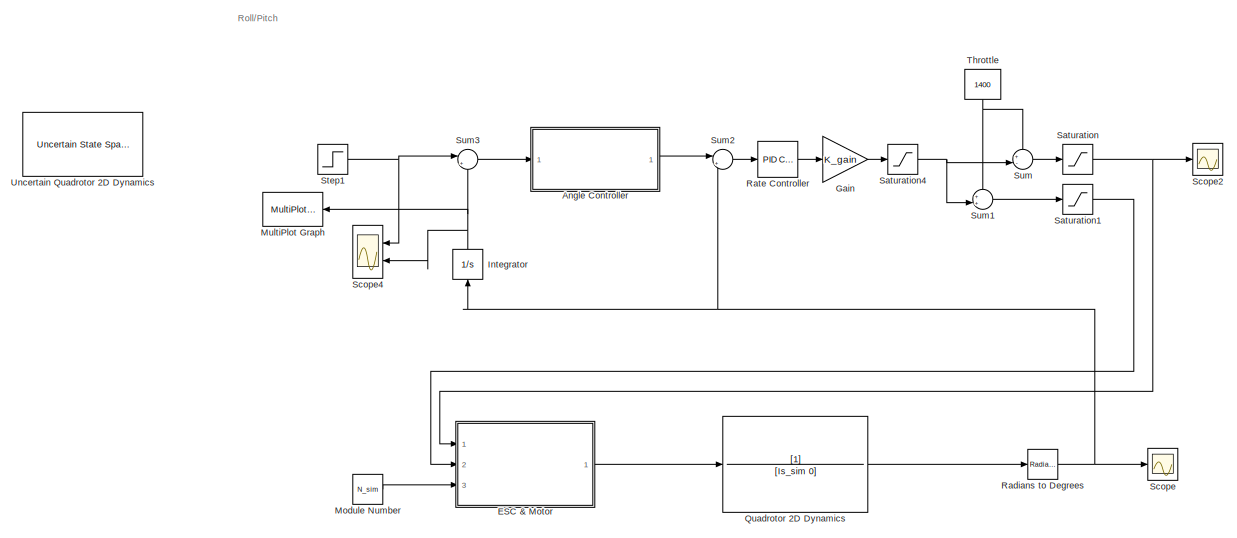
[diagram: root canvas - part 1/3, top left region]
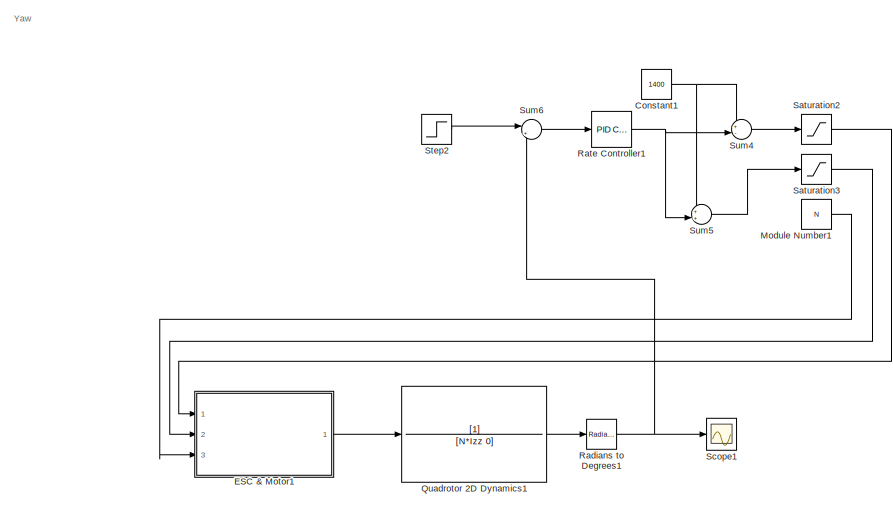
[diagram: root canvas - part 2/3, top right region]
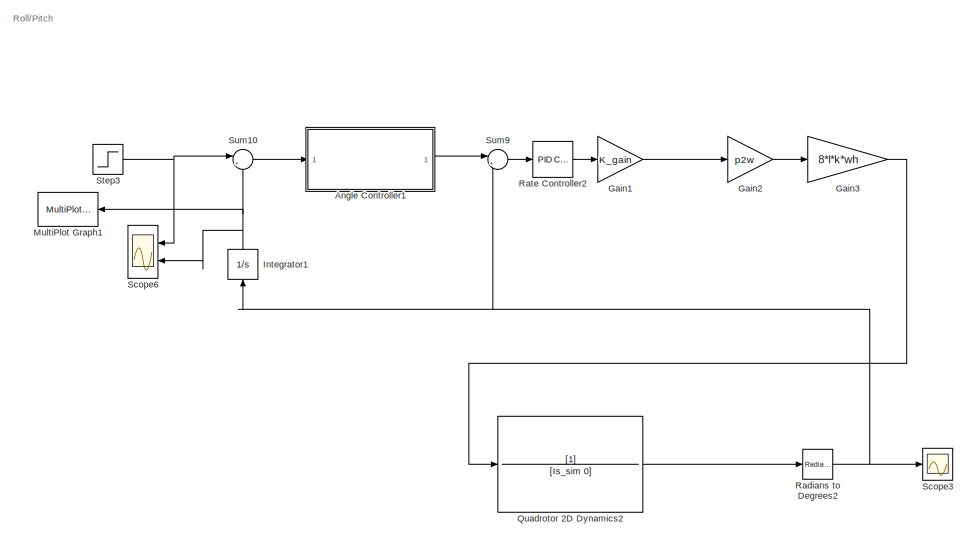
[diagram: root canvas - part 3/3, bottom left region]
MODEL slx_2870eb1e5814
KIND model
CONFIG AbsTol = auto
CONFIG EnableMultiTasking = off
CONFIG FixedStep = 0.005
CONFIG InitFcn = N = 1;\nm = 1;\nl = 0.3;\n\nmax_thrust = 940/1000 * 10;\nmax_rpm = 13610;\nk = max_thrust / (max_rpm^2);\np2w = max_rpm/1000;\nwh = 5444;
CONFIG MaxStep = auto
CONFIG MinStep = auto
CONFIG RelTol = 1e-3
CONFIG SampleTimeConstraint = Unconstrained
CONFIG SolverName = FixedStepAuto
CONFIG StartTime = 0.0
CONFIG StopTime = 2.5
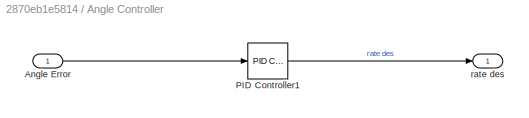
BLOCK [SubSystem] Angle Controller
  Ports = [1, 1]
  RequestExecContextInheritance = off
BLOCK [Inport] Angle Controller/Angle Error
BLOCK [Reference] Angle Controller/PID Controller1  REF=slpidlib/PID Controller
  Ports = [1, 1]
  SourceBlock = slpidlib/PID Controller
  SourceProductBaseCode = SL
  SourceType = PID 1dof
BLOCK [Outport] Angle Controller/rate des
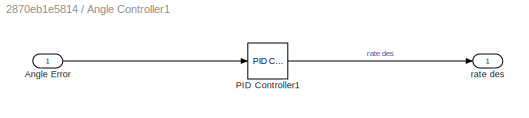
BLOCK [SubSystem] Angle Controller1
  Ports = [1, 1]
  RequestExecContextInheritance = off
BLOCK [Inport] Angle Controller1/Angle Error
BLOCK [Reference] Angle Controller1/PID Controller1  REF=slpidlib/PID Controller
  Ports = [1, 1]
  SourceBlock = slpidlib/PID Controller
  SourceProductBaseCode = SL
  SourceType = PID 1dof
BLOCK [Outport] Angle Controller1/rate des
BLOCK [Constant] Constant1
  Commented = on
  Value = 1400
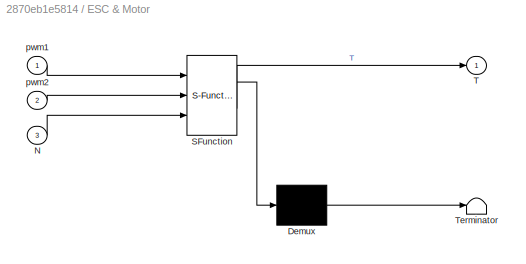
BLOCK [SubSystem] ESC & Motor
  ErrorFcn = Stateflow.Translate.translate
  PermitHierarchicalResolution = ExplicitOnly
  Ports = [3, 1]
  RequestExecContextInheritance = off
  SFBlockType = MATLAB Function
  TreatAsAtomicUnit = on
BLOCK [Demux] ESC & Motor/ Demux 
  Outputs = 1
  Ports = [1, 1]
BLOCK [S-Function] ESC & Motor/ SFunction 
  EnableBusSupport = on
  FunctionName = sf_sfun
  PortCounts = [3 2]
  Ports = [3, 2]
  SFcnIsStateOwnerBlock = off
  SFunctionDeploymentMode = off
  Tag = Stateflow S-Function 2
BLOCK [Terminator] ESC & Motor/ Terminator 
BLOCK [Inport] ESC & Motor/N
  Port = 3
BLOCK [Outport] ESC & Motor/T
BLOCK [Inport] ESC & Motor/pwm1
BLOCK [Inport] ESC & Motor/pwm2
  Port = 2
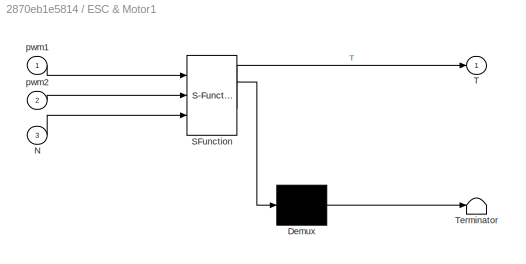
BLOCK [SubSystem] ESC & Motor1
  Commented = on
  ErrorFcn = Stateflow.Translate.translate
  PermitHierarchicalResolution = ExplicitOnly
  Ports = [3, 1]
  RequestExecContextInheritance = off
  SFBlockType = MATLAB Function
  TreatAsAtomicUnit = on
BLOCK [Demux] ESC & Motor1/ Demux 
  Outputs = 1
  Ports = [1, 1]
BLOCK [S-Function] ESC & Motor1/ SFunction 
  EnableBusSupport = on
  FunctionName = sf_sfun
  PortCounts = [3 2]
  Ports = [3, 2]
  SFcnIsStateOwnerBlock = off
  SFunctionDeploymentMode = off
  Tag = Stateflow S-Function 1
BLOCK [Terminator] ESC & Motor1/ Terminator 
BLOCK [Inport] ESC & Motor1/N
  Port = 3
BLOCK [Outport] ESC & Motor1/T
BLOCK [Inport] ESC & Motor1/pwm1
BLOCK [Inport] ESC & Motor1/pwm2
  Port = 2
BLOCK [Gain] Gain
  Gain = K_gain
BLOCK [Gain] Gain1
  Gain = K_gain
BLOCK [Gain] Gain2
  Gain = p2w
BLOCK [Gain] Gain3
  Gain = 8*l*k*wh
BLOCK [Integrator] Integrator
  NameLocation = right
  Ports = [1, 1]
BLOCK [Integrator] Integrator1
  NameLocation = right
  Ports = [1, 1]
BLOCK [Constant] Module Number
  Value = N_sim
BLOCK [Constant] Module Number1
  Commented = on
  Value = N
BLOCK [Reference] MultiPlot Graph  REF=RCTblocks/MultiPlot Graph
  Commented = on
  Ports = [1]
  SourceBlock = RCTblocks/MultiPlot Graph
  SourceProductBaseCode = RC
  SourceType = MultiPlot Graph
  Tag = MultiPlot
BLOCK [Reference] MultiPlot Graph1  REF=RCTblocks/MultiPlot Graph
  Commented = on
  Ports = [1]
  SourceBlock = RCTblocks/MultiPlot Graph
  SourceProductBaseCode = RC
  SourceType = MultiPlot Graph
  Tag = MultiPlot
BLOCK [TransferFcn] Quadrotor 2D Dynamics
  Denominator = [Is_sim 0]
BLOCK [TransferFcn] Quadrotor 2D Dynamics1
  Commented = on
  Denominator = [N*Izz 0]
BLOCK [TransferFcn] Quadrotor 2D Dynamics2
  Denominator = [Is_sim 0]
BLOCK [Reference] Radians to Degrees  REF=simulink_extras/Transformations/Radians
to Degrees
  Ports = [1, 1]
  SourceBlock = simulink_extras/Transformations/Radians\nto Degrees
  SourceProductBaseCode = SL
  SourceType = RadiansToDegrees
BLOCK [Reference] Radians to Degrees1  REF=simulink_extras/Transformations/Radians
to Degrees
  Commented = on
  Ports = [1, 1]
  SourceBlock = simulink_extras/Transformations/Radians\nto Degrees
  SourceProductBaseCode = SL
  SourceType = RadiansToDegrees
BLOCK [Reference] Radians to Degrees2  REF=simulink_extras/Transformations/Radians
to Degrees
  Ports = [1, 1]
  SourceBlock = simulink_extras/Transformations/Radians\nto Degrees
  SourceProductBaseCode = SL
  SourceType = RadiansToDegrees
BLOCK [Reference] Rate Controller  REF=slpidlib/PID Controller
  Ports = [1, 1]
  SourceBlock = slpidlib/PID Controller
  SourceProductBaseCode = SL
  SourceType = PID 1dof
BLOCK [Reference] Rate Controller1  REF=slpidlib/PID Controller
  Commented = on
  Ports = [1, 1]
  SourceBlock = slpidlib/PID Controller
  SourceProductBaseCode = SL
  SourceType = PID 1dof
BLOCK [Reference] Rate Controller2  REF=slpidlib/PID Controller
  Ports = [1, 1]
  SourceBlock = slpidlib/PID Controller
  SourceProductBaseCode = SL
  SourceType = PID 1dof
BLOCK [Saturate] Saturation
  LowerLimit = 1100
  UpperLimit = 1900
BLOCK [Saturate] Saturation1
  LowerLimit = 1100
  UpperLimit = 1900
BLOCK [Saturate] Saturation2
  Commented = on
  LowerLimit = 1100
  UpperLimit = 1900
BLOCK [Saturate] Saturation3
  Commented = on
  LowerLimit = 1100
  UpperLimit = 1900
BLOCK [Saturate] Saturation4
  LowerLimit = -300
  UpperLimit = 300
BLOCK [Scope] Scope
  Floating = off
  NumInputPorts = 1
  Ports = [1]
  ScopeSpecificationString = Simulink.scopes.TimeScopeBlockCfg('CurrentConfiguration', extmgr.ConfigurationSet(extmgr.Configuration('Core','General UI',true,'FigureColor',[1 1 1]),extmgr.Configuration('Core','Source UI',true),extmgr.Configuration('Sources','WiredSimulink',true,'DataLoggingVariableName','ScopeData1'),extmgr.Configuration('Visuals','Time Domain',true,'SerializedDisplays',{struct('MinYLimReal','-0.64102','MaxYLi...<+1536ch>
BLOCK [Scope] Scope1
  Commented = on
  Floating = off
  NumInputPorts = 1
  Ports = [1]
  ScopeSpecificationString = Simulink.scopes.TimeScopeBlockCfg('CurrentConfiguration', extmgr.ConfigurationSet(extmgr.Configuration('Core','General UI',true,'FigureColor',[1 1 1]),extmgr.Configuration('Core','Source UI',true),extmgr.Configuration('Sources','WiredSimulink',true,'DataLoggingVariableName','ScopeData1'),extmgr.Configuration('Visuals','Time Domain',true,'SerializedDisplays',{struct('MinYLimReal','-0.125','MaxYLimR...<+1536ch>
BLOCK [Scope] Scope2
  Floating = off
  NumInputPorts = 1
  Ports = [1]
  ScopeSpecificationString = Simulink.scopes.TimeScopeBlockCfg('CurrentConfiguration', extmgr.ConfigurationSet(extmgr.Configuration('Core','General UI',true,'FigureColor',[1 1 1]),extmgr.Configuration('Core','Source UI',true),extmgr.Configuration('Sources','WiredSimulink',true,'DataLoggingVariableName','ScopeData1'),extmgr.Configuration('Visuals','Time Domain',true,'SerializedDisplays',{struct('MinYLimReal','1346.39092','MaxY...<+1552ch>
BLOCK [Scope] Scope3
  Floating = off
  NumInputPorts = 1
  Ports = [1]
  ScopeSpecificationString = Simulink.scopes.TimeScopeBlockCfg('CurrentConfiguration', extmgr.ConfigurationSet(extmgr.Configuration('Core','General UI',true,'FigureColor',[1 1 1]),extmgr.Configuration('Core','Source UI',true),extmgr.Configuration('Sources','WiredSimulink',true,'DataLoggingVariableName','ScopeData1'),extmgr.Configuration('Visuals','Time Domain',true,'SerializedDisplays',{struct('MinYLimReal','-0.49851','MaxYLi...<+1532ch>
BLOCK [Scope] Scope4
  Floating = off
  NumInputPorts = 2
  Ports = [2]
  ScopeSpecificationString = Simulink.scopes.TimeScopeBlockCfg('CurrentConfiguration', extmgr.ConfigurationSet(extmgr.Configuration('Core','General UI',true),extmgr.Configuration('Core','Source UI',true),extmgr.Configuration('Sources','WiredSimulink',true,'DataLoggingVariableName','ScopeData2'),extmgr.Configuration('Visuals','Time Domain',true,'SerializedDisplays',{struct('MinYLimReal','-0.13753','MaxYLimReal','1.22865','YLab...<+1429ch>
BLOCK [Scope] Scope6
  Floating = off
  NumInputPorts = 2
  Ports = [2]
  ScopeSpecificationString = Simulink.scopes.TimeScopeBlockCfg('CurrentConfiguration', extmgr.ConfigurationSet(extmgr.Configuration('Core','General UI',true),extmgr.Configuration('Core','Source UI',true),extmgr.Configuration('Sources','WiredSimulink',true,'DataLoggingVariableName','ScopeData3'),extmgr.Configuration('Visuals','Time Domain',true,'SerializedDisplays',{struct('MinYLimReal','-0.13112','MaxYLimReal','1.18012','YLab...<+1409ch>
BLOCK [Step] Step1
  SampleTime = 0
BLOCK [Step] Step2
  Commented = on
  SampleTime = 0
BLOCK [Step] Step3
  SampleTime = 0
BLOCK [Sum] Sum
  Inputs = +-|
  Ports = [2, 1]
BLOCK [Sum] Sum1
  Inputs = ++|
  Ports = [2, 1]
BLOCK [Sum] Sum10
  Inputs = |+-
  Ports = [2, 1]
BLOCK [Sum] Sum2
  Inputs = |+-
  Ports = [2, 1]
BLOCK [Sum] Sum3
  Inputs = |+-
  Ports = [2, 1]
BLOCK [Sum] Sum4
  Commented = on
  Inputs = +-|
  Ports = [2, 1]
BLOCK [Sum] Sum5
  Commented = on
  Inputs = ++|
  Ports = [2, 1]
BLOCK [Sum] Sum6
  Commented = on
  Inputs = |+-
  Ports = [2, 1]
BLOCK [Sum] Sum9
  Inputs = |+-
  Ports = [2, 1]
BLOCK [Constant] Throttle
  NameLocation = left
  Value = 1400
BLOCK [Reference] Uncertain Quadrotor 2D Dynamics  REF=RCTblocks/Uncertain State Space
  Commented = on
  Ports = [1, 1]
  SourceBlock = RCTblocks/Uncertain State Space
  SourceProductBaseCode = RC
  SourceType = Uncertain State Space Block
  Tag = USS
ANNOTATION (root): Roll/Pitch
ANNOTATION (root): Yaw
LINE Angle Controller/Angle Error:1 -> Angle Controller/PID Controller1:1
LINE Angle Controller/PID Controller1:1 -> Angle Controller/rate des:1
LINE Angle Controller1/Angle Error:1 -> Angle Controller1/PID Controller1:1
LINE Angle Controller1/PID Controller1:1 -> Angle Controller1/rate des:1
LINE Angle Controller1:1 -> Sum9:1
LINE Angle Controller:1 -> Sum2:1
NET Constant1:1 -> Sum4:1, Sum5:1
LINE ESC & Motor1:1 -> Quadrotor 2D Dynamics1:1
LINE ESC & Motor:1 -> Quadrotor 2D Dynamics:1
LINE Gain1:1 -> Gain2:1
LINE Gain2:1 -> Gain3:1
LINE Gain3:1 -> Quadrotor 2D Dynamics2:1
LINE Gain:1 -> Saturation4:1
NET Integrator1:1 -> MultiPlot Graph1:1, Scope6:2, Sum10:2
NET Integrator:1 -> MultiPlot Graph:1, Scope4:2, Sum3:2
LINE Module Number1:1 -> ESC & Motor1:3
LINE Module Number:1 -> ESC & Motor:3
LINE Quadrotor 2D Dynamics1:1 -> Radians to Degrees1:1
LINE Quadrotor 2D Dynamics2:1 -> Radians to Degrees2:1
LINE Quadrotor 2D Dynamics:1 -> Radians to Degrees:1
NET Radians to Degrees1:1 -> Scope1:1, Sum6:2
NET Radians to Degrees2:1 -> Integrator1:1, Scope3:1, Sum9:2
NET Radians to Degrees:1 -> Integrator:1, Scope:1, Sum2:2
NET Rate Controller1:1 -> Sum4:2, Sum5:2
LINE Rate Controller2:1 -> Gain1:1
LINE Rate Controller:1 -> Gain:1
LINE Saturation1:1 -> ESC & Motor:2
LINE Saturation2:1 -> ESC & Motor1:1
LINE Saturation3:1 -> ESC & Motor1:2
NET Saturation4:1 -> Sum1:2, Sum:2
NET Saturation:1 -> ESC & Motor:1, Scope2:1
NET Step1:1 -> Scope4:1, Sum3:1
LINE Step2:1 -> Sum6:1
NET Step3:1 -> Scope6:1, Sum10:1
LINE Sum10:1 -> Angle Controller1:1
LINE Sum1:1 -> Saturation1:1
LINE Sum2:1 -> Rate Controller:1
LINE Sum3:1 -> Angle Controller:1
LINE Sum4:1 -> Saturation2:1
LINE Sum5:1 -> Saturation3:1
LINE Sum6:1 -> Rate Controller1:1
LINE Sum9:1 -> Rate Controller2:1
LINE Sum:1 -> Saturation:1
NET Throttle:1 -> Sum1:1, Sum:1
note: NET lines group one-source signal fan-out (src -> all destinations, sorted); 1:1 wires keep LINE
CHART ESC & Motor1 states=1 transitions=1
  STATE_LABEL 'eML_blk_kernel()'
  STATE_LABEL 'SCRIPT:\nfunction T = pwm2T(pwm1,pwm2,N)\nmax_thrust = 940/1000 * 10;\nmax_rpm = 13610;\nk = max_thrust / (max_rpm^2)*0.05;\nl = 0.15;\nw1 = (pwm1 - 1000) * (max_rpm - 0) / (2000 - 1000) + 0;\nw2 = (pwm2 - 1000) * (max_rpm - 0) / (2000 - 1000) + 0;\n\n\nM1 = k*w1^2; M2=k*w2^2;\n\nT = N*2*(M2-M1);\n'
CHART ESC & Motor states=1 transitions=1
  STATE_LABEL 'eML_blk_kernel()'
  STATE_LABEL 'SCRIPT:\nfunction T = pwm2T(pwm1,pwm2,N)\nmax_thrust = 940/1000 * 10;\nmax_rpm = 13610;\nk = max_thrust / (max_rpm^2);\nl = 0.2;\nw1 = (pwm1 - 1000) * (max_rpm - 0) / (2000 - 1000) + 0;\nw2 = (pwm2 - 1000) * (max_rpm - 0) / (2000 - 1000) + 0;\n\n\nF1 = k*w1^2; F2=k*w2^2;\n\nT = N*2*(F2-F1)*l;\n'
CHART  states=0 transitions=0
CHART  states=0 transitions=0
